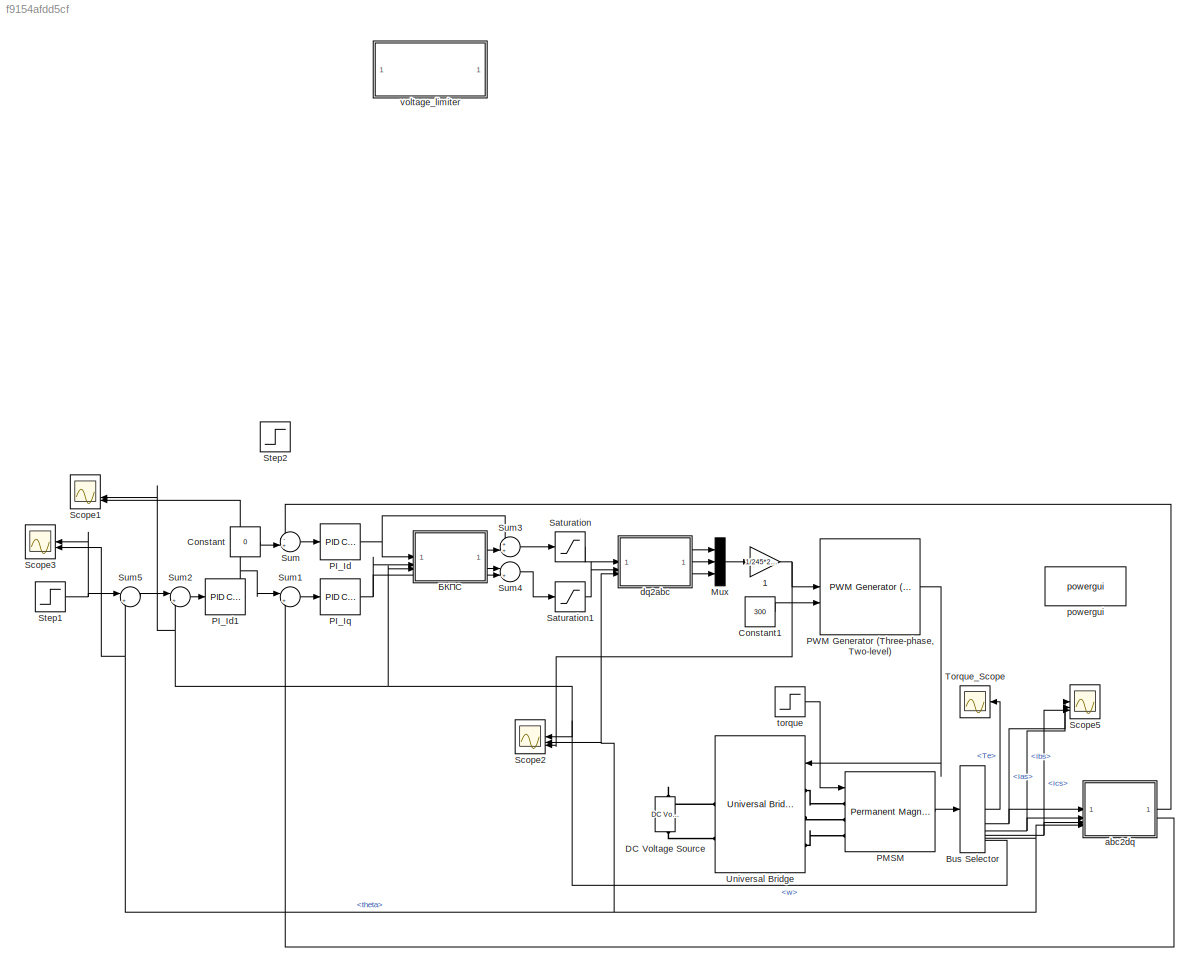
MODEL slx_f9154afdd5cf
KIND model
CONFIG AbsTol = auto
CONFIG EnableMultiTasking = off
CONFIG FixedStep = auto
CONFIG MaxStep = auto
CONFIG MinStep = auto
CONFIG RelTol = 1e-3
CONFIG SampleTimeConstraint = Unconstrained
CONFIG SolverName = VariableStepAuto
CONFIG StartTime = 0.0
CONFIG StopTime = 10
BLOCK [Gain] 1
  Gain = 1/245*254
  NameLocation = top
BLOCK [BusSelector] Bus Selector
  OutputSignals = Te,ias,ibs,ics,theta,w
BLOCK [Constant] Constant
  Value = 0
BLOCK [Constant] Constant1
  Value = 300
BLOCK [Reference] DC Voltage Source  REF=spsDCVoltageSourceLib/DC Voltage Source
  SourceBlock = spsDCVoltageSourceLib/DC Voltage Source
  SourceType = DC Voltage Source
BLOCK [Mux] Mux
  DisplayOption = bar
  Inputs = 3
BLOCK [Reference] PI_Id  REF=slpidlib/PID Controller
  SourceBlock = slpidlib/PID Controller
  SourceType = PID 1dof
BLOCK [Reference] PI_Id1  REF=slpidlib/PID Controller
  SourceBlock = slpidlib/PID Controller
  SourceType = PID 1dof
BLOCK [Reference] PI_Iq  REF=slpidlib/PID Controller
  SourceBlock = slpidlib/PID Controller
  SourceType = PID 1dof
BLOCK [Reference] PMSM  REF=spsPermanentMagnetSynchronousMachineLib/Permanent Magnet
Synchronous Machine
  SourceBlock = spsPermanentMagnetSynchronousMachineLib/Permanent Magnet\nSynchronous Machine
  SourceType = Permanent Magnet Synchronous Machine
BLOCK [Reference] PWM Generator (Three-phase, Two-level)  REF=eePwmGeneratorTwoLevel/PWM Generator
(Three-phase, Two-level)
  SourceBlock = eePwmGeneratorTwoLevel/PWM Generator\n(Three-phase, Two-level)
  SourceType = PWM Generator (three-phase, two-level)
BLOCK [Saturate] Saturation
  LowerLimit = -300
  UpperLimit = 300
BLOCK [Saturate] Saturation1
  LowerLimit = -300
  UpperLimit = 300
BLOCK [Scope] Scope1
  Floating = off
  NameLocation = top
  NumInputPorts = 3
  ScopeSpecificationString = Simulink.scopes.TimeScopeBlockCfg('CurrentConfiguration', extmgr.ConfigurationSet(extmgr.Configuration('Core','General UI',true),extmgr.Configuration('Core','Source UI',true),extmgr.Configuration('Sources','WiredSimulink',true,'DataLoggingVariableName','ScopeData1'),extmgr.Configuration('Visuals','Time Domain',true,'SerializedDisplays',{struct('MinYLimReal','-41.80602','MaxYLimReal','45.98662','YL...<+1642ch>
BLOCK [Scope] Scope2
  Floating = off
  NameLocation = top
  NumInputPorts = 3
  ScopeSpecificationString = Simulink.scopes.TimeScopeBlockCfg('CurrentConfiguration', extmgr.ConfigurationSet(extmgr.Configuration('Core','General UI',true),extmgr.Configuration('Core','Source UI',true),extmgr.Configuration('Sources','WiredSimulink',true,'DataLoggingVariableName','ScopeData3'),extmgr.Configuration('Visuals','Time Domain',true,'SerializedDisplays',{struct('MinYLimReal','-12.21556','MaxYLimReal','101.08514','Y...<+2988ch>
BLOCK [Scope] Scope3
  Floating = off
  NameLocation = top
  NumInputPorts = 3
  ScopeSpecificationString = Simulink.scopes.TimeScopeBlockCfg('CurrentConfiguration', extmgr.ConfigurationSet(extmgr.Configuration('Core','General UI',true),extmgr.Configuration('Core','Source UI',true),extmgr.Configuration('Sources','WiredSimulink',true,'DataLoggingVariableName','ScopeData1'),extmgr.Configuration('Visuals','Time Domain',true,'SerializedDisplays',{struct('MinYLimReal','-1.25','MaxYLimReal','11.25','YLabelRea...<+1599ch>
BLOCK [Scope] Scope5
  Floating = off
  NumInputPorts = 3
  ScopeSpecificationString = Simulink.scopes.TimeScopeBlockCfg('CurrentConfiguration', extmgr.ConfigurationSet(extmgr.Configuration('Core','General UI',true),extmgr.Configuration('Core','Source UI',true),extmgr.Configuration('Sources','WiredSimulink',true,'DataLoggingVariableName','ScopeData1'),extmgr.Configuration('Visuals','Time Domain',true,'SerializedDisplays',{struct('MinYLimReal','-12.77338','MaxYLimReal','8.2534','YLab...<+1634ch>
BLOCK [Step] Step1
  After = 10
  SampleTime = 0
  Time = 0
BLOCK [Step] Step2
  After = 10
  SampleTime = 0
  Time = 0
BLOCK [Sum] Sum
  Inputs = -+|
BLOCK [Sum] Sum1
  Inputs = |+-
BLOCK [Sum] Sum2
  Inputs = |+-
BLOCK [Sum] Sum3
  Inputs = ++|
BLOCK [Sum] Sum4
  Inputs = |++
BLOCK [Sum] Sum5
  Inputs = |+-
BLOCK [Scope] Torque_Scope
  Floating = off
  NameLocation = top
  NumInputPorts = 1
  ScopeSpecificationString = Simulink.scopes.TimeScopeBlockCfg('CurrentConfiguration', extmgr.ConfigurationSet(extmgr.Configuration('Core','General UI',true),extmgr.Configuration('Core','Source UI',true),extmgr.Configuration('Sources','WiredSimulink',true),extmgr.Configuration('Visuals','Time Domain',true,'SerializedDisplays',{struct('MinYLimReal','-1.84016','MaxYLimReal','13.6461','YLabelReal','','MinYLimMag','0.00000','MaxY...<+1395ch>
BLOCK [Reference] Universal Bridge  REF=spsUniversalBridgeLib/Universal Bridge
  NameLocation = top
  SourceBlock = spsUniversalBridgeLib/Universal Bridge
  SourceType = Universal Bridge
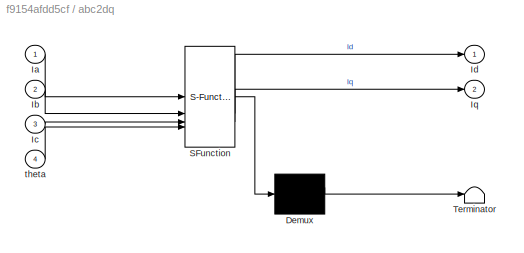
BLOCK [SubSystem] abc2dq
  ErrorFcn = Stateflow.Translate.translate
  PermitHierarchicalResolution = ExplicitOnly
  SFBlockType = MATLAB Function
  TreatAsAtomicUnit = on
BLOCK [Demux] abc2dq/ Demux 
  Outputs = 1
BLOCK [S-Function] abc2dq/ SFunction 
  EnableBusSupport = on
  FunctionName = sf_sfun
  PortCounts = [4 3]
  SFcnIsStateOwnerBlock = off
  SFunctionDeploymentMode = off
  Tag = Stateflow S-Function 1
BLOCK [Terminator] abc2dq/ Terminator 
BLOCK [Inport] abc2dq/Ia
BLOCK [Inport] abc2dq/Ib
  Port = 2
BLOCK [Inport] abc2dq/Ic
  Port = 3
BLOCK [Outport] abc2dq/Id
BLOCK [Outport] abc2dq/Iq
  Port = 2
BLOCK [Inport] abc2dq/theta
  Port = 4
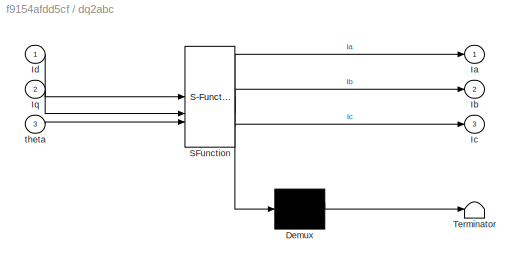
BLOCK [SubSystem] dq2abc
  ErrorFcn = Stateflow.Translate.translate
  PermitHierarchicalResolution = ExplicitOnly
  SFBlockType = MATLAB Function
  TreatAsAtomicUnit = on
BLOCK [Demux] dq2abc/ Demux 
  Outputs = 1
BLOCK [S-Function] dq2abc/ SFunction 
  EnableBusSupport = on
  FunctionName = sf_sfun
  PortCounts = [3 4]
  SFcnIsStateOwnerBlock = off
  SFunctionDeploymentMode = off
  Tag = Stateflow S-Function 2
BLOCK [Terminator] dq2abc/ Terminator 
BLOCK [Outport] dq2abc/Ia
BLOCK [Outport] dq2abc/Ib
  Port = 2
BLOCK [Outport] dq2abc/Ic
  Port = 3
BLOCK [Inport] dq2abc/Id
BLOCK [Inport] dq2abc/Iq
  Port = 2
BLOCK [Inport] dq2abc/theta
  Port = 3
BLOCK [Reference] powergui  REF=spspowerguiLib/powergui
  Priority = 1
  SourceBlock = spspowerguiLib/powergui
  SourceType = PSB option menu block
BLOCK [Step] torque
  After = 2
  SampleTime = 0
  Time = 0
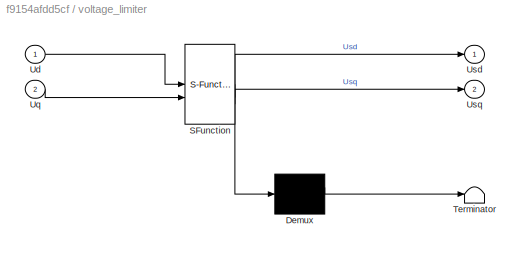
BLOCK [SubSystem] voltage_limiter
  Commented = on
  ErrorFcn = Stateflow.Translate.translate
  PermitHierarchicalResolution = ExplicitOnly
  SFBlockType = MATLAB Function
  TreatAsAtomicUnit = on
BLOCK [Demux] voltage_limiter/ Demux 
  Outputs = 1
BLOCK [S-Function] voltage_limiter/ SFunction 
  EnableBusSupport = off
  FunctionName = sf_sfun
  PortCounts = [2 3]
  SFcnIsStateOwnerBlock = off
  SFunctionDeploymentMode = off
  Tag = Stateflow S-Function 5
BLOCK [Terminator] voltage_limiter/ Terminator 
BLOCK [Inport] voltage_limiter/Ud
BLOCK [Inport] voltage_limiter/Uq
  Port = 2
BLOCK [Outport] voltage_limiter/Usd
BLOCK [Outport] voltage_limiter/Usq
  Port = 2
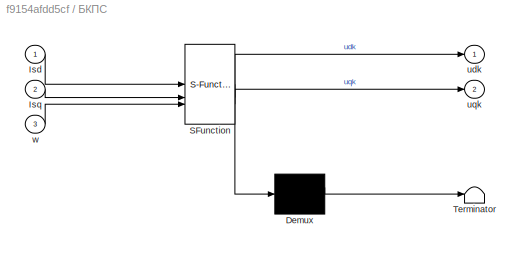
BLOCK [SubSystem] БКПС
  ErrorFcn = Stateflow.Translate.translate
  PermitHierarchicalResolution = ExplicitOnly
  SFBlockType = MATLAB Function
  TreatAsAtomicUnit = on
BLOCK [Demux] БКПС/ Demux 
  Outputs = 1
BLOCK [S-Function] БКПС/ SFunction 
  EnableBusSupport = on
  FunctionName = sf_sfun
  PortCounts = [3 3]
  SFcnIsStateOwnerBlock = off
  SFunctionDeploymentMode = off
  Tag = Stateflow S-Function 4
BLOCK [Terminator] БКПС/ Terminator 
BLOCK [Inport] БКПС/Isd
BLOCK [Inport] БКПС/Isq
  Port = 2
BLOCK [Outport] БКПС/udk
  VectorParamsAs1DForOutWhenUnconnected = off
BLOCK [Outport] БКПС/uqk
  Port = 2
BLOCK [Inport] БКПС/w
  Port = 3
NET 1:1 -> PWM Generator (Three-phase, Two-level):1, Scope2:3
LINE Bus Selector:1 -> Torque_Scope:1
NET Bus Selector:2 -> Scope5:1, abc2dq:1
NET Bus Selector:3 -> Scope5:2, abc2dq:2
NET Bus Selector:4 -> Scope5:3, abc2dq:3
NET Bus Selector:5 -> Scope2:2, Scope3:2, Sum5:2, abc2dq:4, dq2abc:3
NET Bus Selector:6 -> Scope1:2, Scope2:1, Sum2:2, БКПС:3
LINE Constant1:1 -> PWM Generator (Three-phase, Two-level):2
LINE Constant:1 -> Sum:2
LINE Mux:1 -> 1:1
NET PI_Id1:1 -> Scope1:3, Sum1:1
NET PI_Id:1 -> Sum3:1, БКПС:1
NET PI_Iq:1 -> Sum4:2, БКПС:2
LINE PMSM:1 -> Bus Selector:1
LINE PWM Generator (Three-phase, Two-level):1 -> Universal Bridge:1
LINE Saturation1:1 -> dq2abc:2
LINE Saturation:1 -> dq2abc:1
NET Step1:1 -> Scope3:1, Sum5:1
LINE Sum1:1 -> PI_Iq:1
LINE Sum2:1 -> PI_Id1:1
LINE Sum3:1 -> Saturation:1
LINE Sum4:1 -> Saturation1:1
LINE Sum5:1 -> Sum2:1
LINE Sum:1 -> PI_Id:1
LINE abc2dq:1 -> Sum:1
LINE abc2dq:2 -> Sum1:2
LINE dq2abc:1 -> Mux:1
LINE dq2abc:2 -> Mux:2
LINE dq2abc:3 -> Mux:3
LINE torque:1 -> PMSM:1
LINE БКПС:1 -> Sum3:2
LINE БКПС:2 -> Sum4:1
PLINE DC Voltage Source:LConn1 -- Universal Bridge:RConn2
PLINE DC Voltage Source:RConn1 -- Universal Bridge:RConn1
PLINE PMSM:LConn1 -- Universal Bridge:LConn1
PLINE PMSM:LConn2 -- Universal Bridge:LConn2
PLINE PMSM:LConn3 -- Universal Bridge:LConn3
note: NET lines group one-source signal fan-out (src -> all destinations, sorted); 1:1 wires keep LINE
CHART abc2dq states=1 transitions=1
  STATE_LABEL 'eML_blk_kernel()'
  STATE_LABEL 'SCRIPT:\nfunction [Id, Iq] = fcn(Ia, Ib, Ic, theta)\n    cos_theta = cos(theta);\n    sin_theta = sin(theta);\n\n    Id = (Ib - Ic)/sqrt(3)*sin_theta + Ia*cos_theta;\n    Iq = (Ib - Ic)/sqrt(3)*cos_theta - Ia*sin_theta;\nend\n'
CHART dq2abc states=1 transitions=1
  STATE_LABEL 'eML_blk_kernel()'
  STATE_LABEL 'SCRIPT:\nfunction [Ia, Ib, Ic] = fcn(Id, Iq, theta)\n    cos_theta = cos(theta);\n    sin_theta = sin(theta);\n\n    Ia = Id*cos(theta) - Iq*sin(theta);\n    Ib = sqrt(3)/2 * (Iq*cos_theta + Id*sin_theta) - 0.5*Ia;\n    Ic = -sqrt(3)/2 * (Iq*cos_theta + Id*sin_theta) - 0.5*Ia;\nend\n'
CHART БКПС states=1 transitions=1
  STATE_LABEL 'eML_blk_kernel()'
  STATE_LABEL 'SCRIPT:\nfunction [udk, uqk] = fcn(Isd, Isq, w)\n    Lsq = 8.5e-3;\n    Lsd = 8.5e-3;\n    psi_f = 0.666667;\n    udk = -w*Lsq*Isq;\n    uqk = w*(psi_f*Lsd*Isd);\nend'
CHART voltage_limiter states=1 transitions=1
  STATE_LABEL 'eML_blk_kernel()'
  STATE_LABEL 'SCRIPT:\nfunction [Usd, Usq] = voltage_limiter(Ud, Uq)\n    Ud=real(Ud);\n    Uq=real(Uq);\n    Udc = 300;\n    Usd_lim = Udc / sqrt(3);\n    if Ud > Usd_lim\n        Usd = Usd_lim*sign(Ud);\n    else\n        Usd = Ud;\n    end\n    \n    Usq_lim = sqrt(Usd_lim^2 - Usd^2);\n    if Uq > Usq_lim\n        Usq = Usq_lim*sign(Uq);\n    else\n        Usq = Uq;\n    end\nend\n'
CHART  states=0 transitions=0
CHART  states=0 transitions=0
CHART  states=0 transitions=0
CHART  states=0 transitions=0
